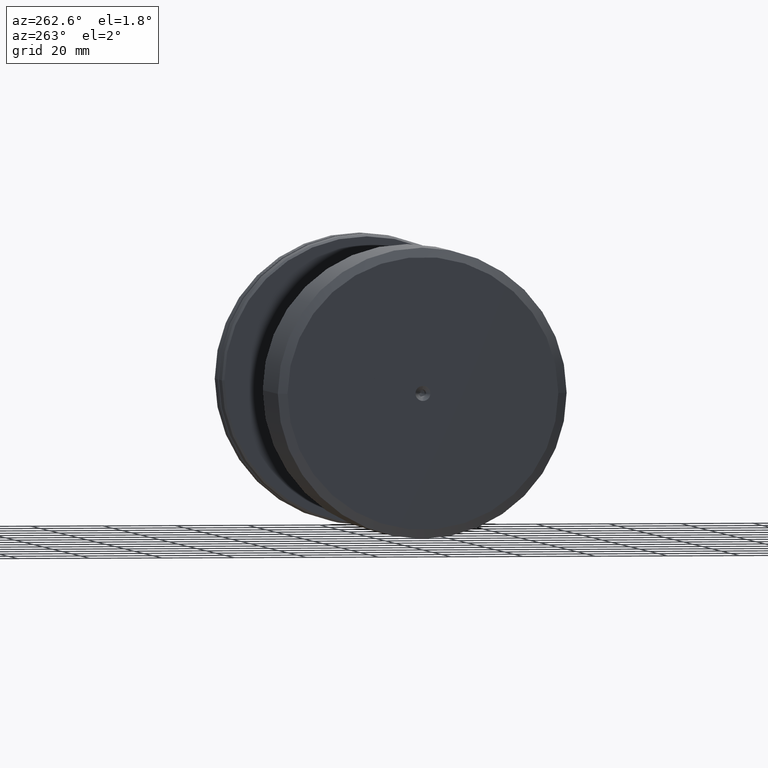
[diagram: clean part render]
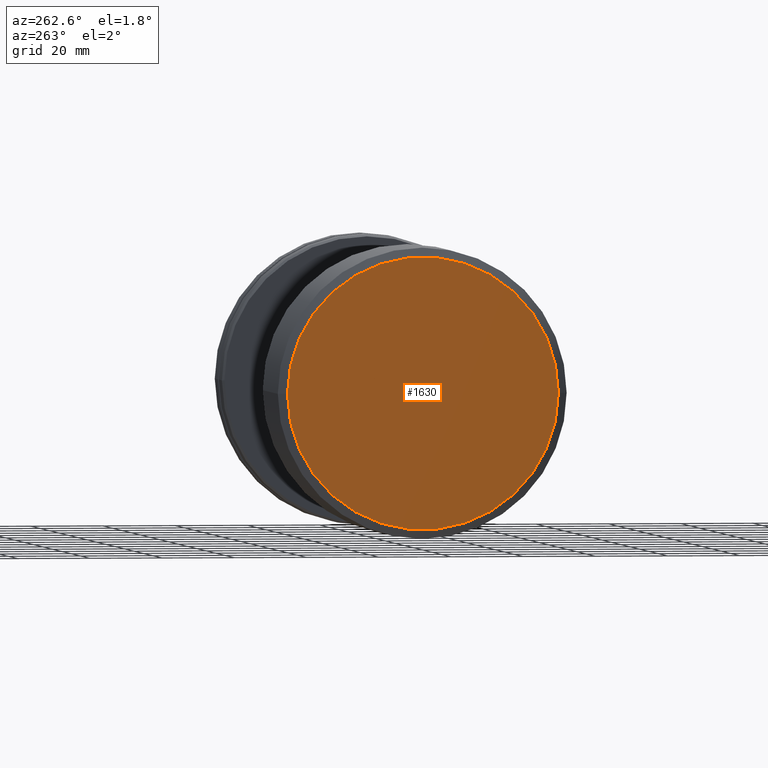
[diagram: same view with one face highlighted and labeled with its STEP entity id]
A machine part, auxiliary view. The second image highlights one B-rep face of the part: STEP entity #1630.
In plain terms, the highlighted planar face has unit normal (-1, -0, 0).
Its self-contained STEP definition (entity closure, byte-faithful):
#23 = ORIENTED_EDGE ( 'NONE', *, *, #2027, .T. ) ;
#40 = DIRECTION ( 'NONE',  ( -1.000000000000000000, -1.069542322069065801E-17, -0.000000000000000000 ) ) ;
#51 = VERTEX_POINT ( 'NONE', #363 ) ;
#59 = PLANE ( 'NONE',  #385 ) ;
#138 = DIRECTION ( 'NONE',  ( 1.069542322069063644E-17, -1.000000000000000000, 0.000000000000000000 ) ) ;
#210 = CARTESIAN_POINT ( 'NONE',  ( 4.592425496802573578E-15, -37.49999999999999289, 4.745506346695992513E-15 ) ) ;
#267 = DIRECTION ( 'NONE',  ( 1.069542322069065801E-17, -1.000000000000000000, 0.000000000000000000 ) ) ;
#363 = CARTESIAN_POINT ( 'NONE',  ( 2.095673563013336780E-15, 0.000000000000000000, 2.075000000000021494 ) ) ;
#385 = AXIS2_PLACEMENT_3D ( 'NONE', #814, #1310, #267 ) ;
#492 = ORIENTED_EDGE ( 'NONE', *, *, #2220, .T. ) ;
#544 = CIRCLE ( 'NONE', #836, 37.49999999999999289 ) ;
#550 = EDGE_CURVE ( 'NONE', #51, #672, #792, .T. ) ;
#580 = AXIS2_PLACEMENT_3D ( 'NONE', #1100, #40, #2208 ) ;
#672 = VERTEX_POINT ( 'NONE', #2093 ) ;
#737 = AXIS2_PLACEMENT_3D ( 'NONE', #834, #1723, #138 ) ;
#762 = AXIS2_PLACEMENT_3D ( 'NONE', #1110, #1694, #2004 ) ;
#792 = CIRCLE ( 'NONE', #762, 2.075000000000021494 ) ;
#793 = FACE_OUTER_BOUND ( 'NONE', #1721, .T. ) ;
#814 = CARTESIAN_POINT ( 'NONE',  ( 2.095673563013336780E-15, 2.241411568884037022E-32, 0.000000000000000000 ) ) ;
#834 = CARTESIAN_POINT ( 'NONE',  ( 2.095673563013336780E-15, 0.000000000000000000, 0.000000000000000000 ) ) ;
#836 = AXIS2_PLACEMENT_3D ( 'NONE', #848, #2046, #1709 ) ;
#841 = CARTESIAN_POINT ( 'NONE',  ( 3.790268755250773542E-15, 37.49999999999999289, 0.000000000000000000 ) ) ;
#848 = CARTESIAN_POINT ( 'NONE',  ( 4.191347126026673560E-15, 4.482823137768074044E-32, 0.000000000000000000 ) ) ;
#1100 = CARTESIAN_POINT ( 'NONE',  ( 4.191347126026673560E-15, 4.482823137768074044E-32, 0.000000000000000000 ) ) ;
#1110 = CARTESIAN_POINT ( 'NONE',  ( 2.095673563013336780E-15, 0.000000000000000000, 0.000000000000000000 ) ) ;
#1212 = EDGE_LOOP ( 'NONE', ( #1438, #492 ) ) ;
#1249 = VERTEX_POINT ( 'NONE', #841 ) ;
#1310 = DIRECTION ( 'NONE',  ( -1.000000000000000000, -1.069542322069065801E-17, 0.000000000000000000 ) ) ;
#1438 = ORIENTED_EDGE ( 'NONE', *, *, #550, .T. ) ;
#1630 = ADVANCED_FACE ( 'NONE', ( #1664, #793 ), #59, .T. ) ;
#1664 = FACE_BOUND ( 'NONE', #1212, .T. ) ;
#1679 = ORIENTED_EDGE ( 'NONE', *, *, #2141, .T. ) ;
#1694 = DIRECTION ( 'NONE',  ( 1.000000000000000000, 1.069542322069065801E-17, 0.000000000000000000 ) ) ;
#1709 = DIRECTION ( 'NONE',  ( 1.069542322069066725E-17, -1.000000000000000000, 0.000000000000000000 ) ) ;
#1721 = EDGE_LOOP ( 'NONE', ( #1679, #23 ) ) ;
#1723 = DIRECTION ( 'NONE',  ( 1.000000000000000000, 1.069542322069065801E-17, 0.000000000000000000 ) ) ;
#1827 = CIRCLE ( 'NONE', #580, 37.49999999999999289 ) ;
#1913 = VERTEX_POINT ( 'NONE', #210 ) ;
#1986 = CIRCLE ( 'NONE', #737, 2.075000000000021494 ) ;
#2004 = DIRECTION ( 'NONE',  ( 1.069542322069063644E-17, -1.000000000000000000, 0.000000000000000000 ) ) ;
#2027 = EDGE_CURVE ( 'NONE', #1913, #1249, #1827, .T. ) ;
#2046 = DIRECTION ( 'NONE',  ( -1.000000000000000000, -1.069542322069065801E-17, -0.000000000000000000 ) ) ;
#2093 = CARTESIAN_POINT ( 'NONE',  ( 2.095673563013336780E-15, 2.541142108230784202E-16, -2.075000000000021494 ) ) ;
#2141 = EDGE_CURVE ( 'NONE', #1249, #1913, #544, .T. ) ;
#2208 = DIRECTION ( 'NONE',  ( 1.069542322069066725E-17, -1.000000000000000000, 0.000000000000000000 ) ) ;
#2220 = EDGE_CURVE ( 'NONE', #672, #51, #1986, .T. ) ;